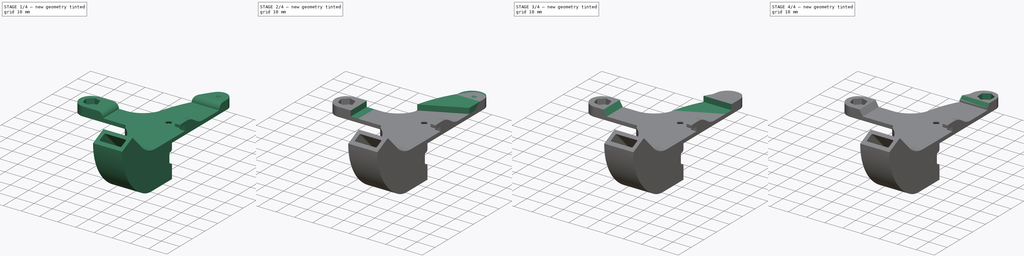
[diagram: build sequence overview — one tinted view per stage of 4, left to right]
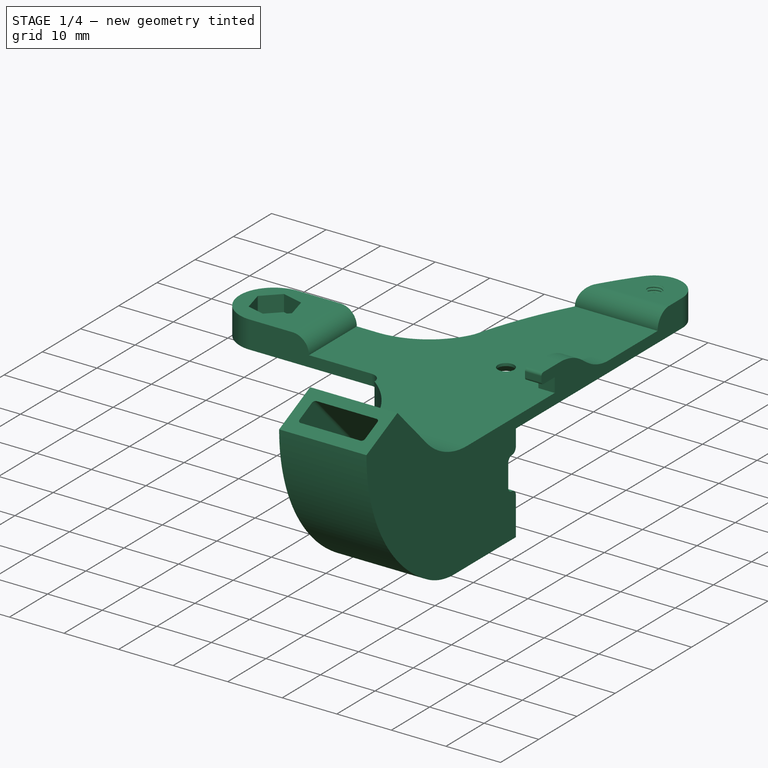
[diagram: stage 1 of 4 — iso view after this stage's code; geometry added in this stage tinted green]
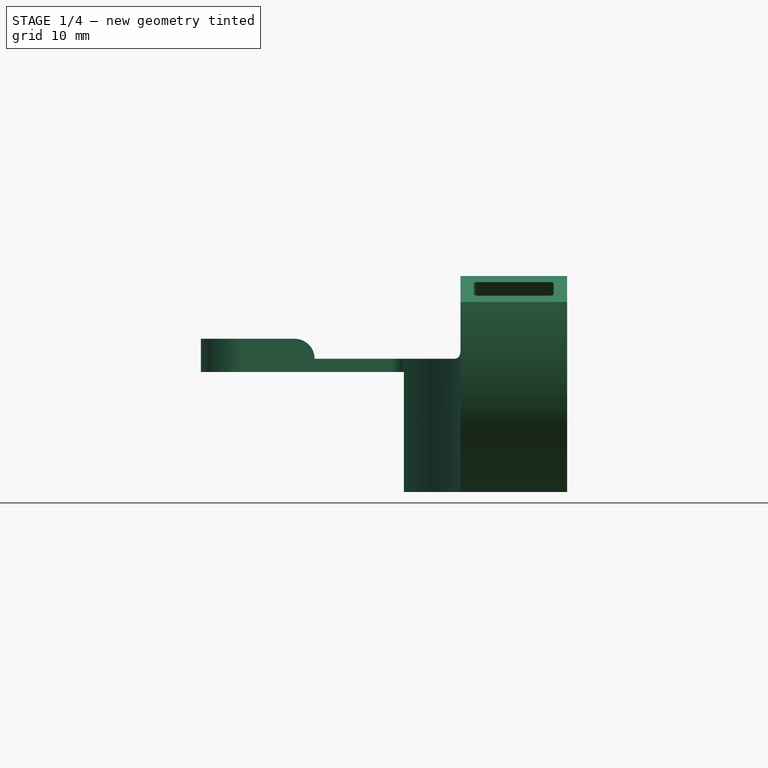
[diagram: stage 1 of 4 — front view after this stage's code; geometry added in this stage tinted green]
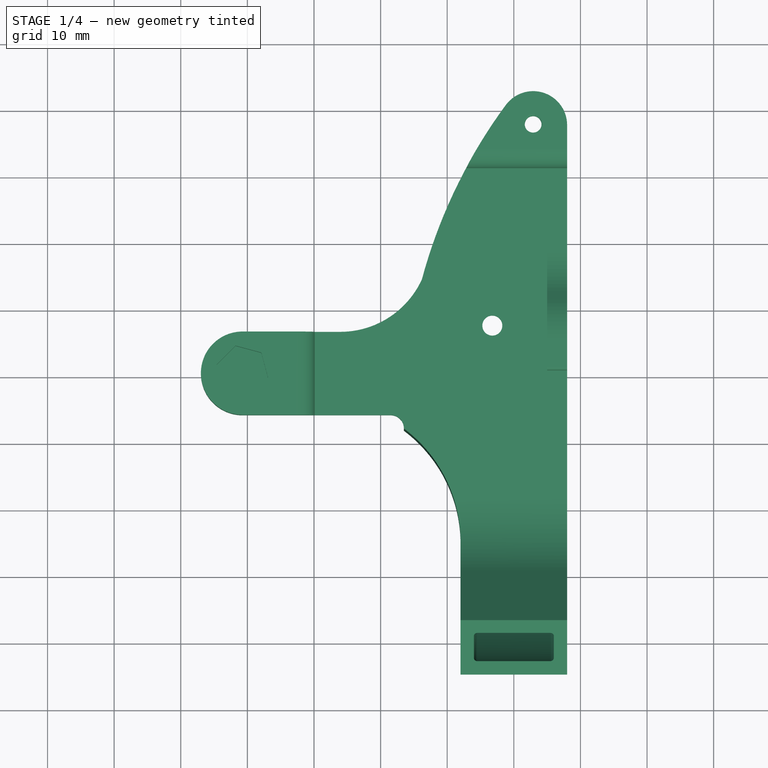
[diagram: stage 1 of 4 — top view after this stage's code; geometry added in this stage tinted green]
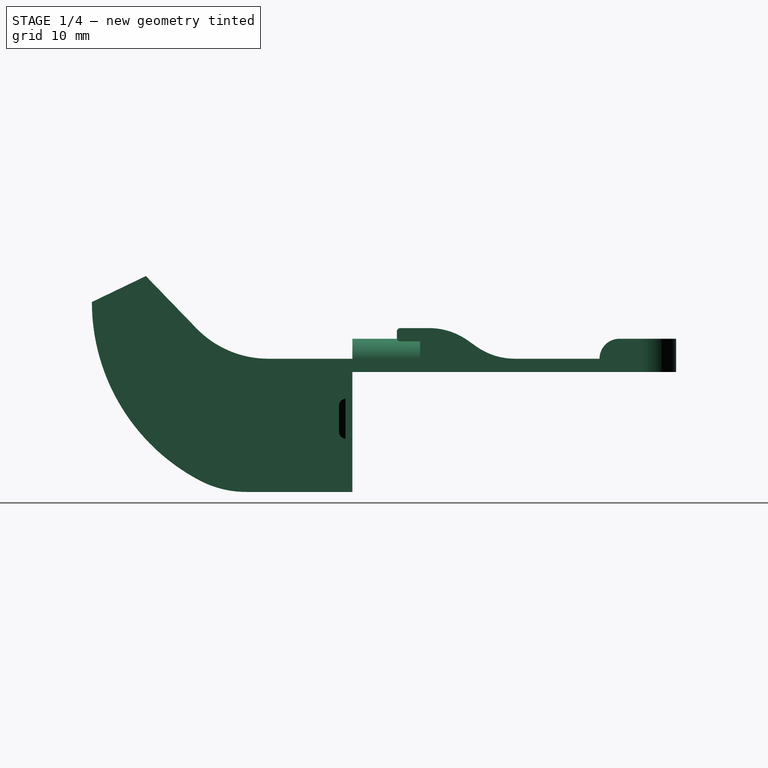
[diagram: stage 1 of 4 — right view after this stage's code; geometry added in this stage tinted green]
FCSTD DOCUMENT  (FreeCAD 0.22R37841 (Git))
Label: LeftFanDuct
License: All rights reserved
LicenseURL: http://en.wikipedia.org/wiki/All_rights_reserved
objects: Sketcher::SketchObject×8, PartDesign::Pocket×6, PartDesign::Pad×2, PartDesign::Chamfer×2, Part::Feature×1, PartDesign::FeatureBase×1, PartDesign::Body×1
note: 31 computed .brp shape members not serialized (recipe doc carries the construction recipe); baked Part::Feature solids carry a one-line shape summary decoded from their .brp

FEATURE [Part::Feature] Part__Feature001  label="Component3"
  Placement = pos=(148.755,-7.63929,30.4462) rot=(0,1,0;3.14159rad)
  shape: bbox 53.35 x 87.72 x 32.41 mm, 3777 faces (baked)
FEATURE [PartDesign::FeatureBase] BaseFeature
  BaseFeature = -> Part__Feature001
  Suppressed = false
FEATURE [Sketcher::SketchObject] Sketch
  AttachmentSupport = -> [BaseFeature]
  FullyConstrained = false
  MapMode = 5
  Placement = pos=(5.1e-15,2e-16,23) rot=(0,0,1;0rad)
  sketch-geometry (9):
    g0: Circle CenterX=-40.7366 CenterY=-9.47614 CenterZ=0 NormalX=0 NormalY=0 NormalZ=1 AngleXU=0 Radius=1.39065
    g1: Circle CenterX=-40.7366 CenterY=-9.47614 CenterZ=0 NormalX=0 NormalY=0 NormalZ=1 AngleXU=0 Radius=2
    g2: LineSegment StartX=-37.9081 StartY=-6.64771 StartZ=0 EndX=-41.7718 EndY=-5.61244 EndZ=0
    g3: LineSegment StartX=-41.7718 StartY=-5.61244 StartZ=0 EndX=-44.6003 EndY=-8.44086 EndZ=0
    g4: LineSegment StartX=-44.6003 StartY=-8.44086 StartZ=0 EndX=-43.565 EndY=-12.3046 EndZ=0
    g5: LineSegment StartX=-43.565 StartY=-12.3046 StartZ=0 EndX=-39.7013 EndY=-13.3398 EndZ=0
    g6: LineSegment StartX=-39.7013 StartY=-13.3398 StartZ=0 EndX=-36.8729 EndY=-10.5114 EndZ=0
    g7: LineSegment StartX=-36.8729 StartY=-10.5114 StartZ=0 EndX=-37.9081 EndY=-6.64771 EndZ=0
    g8: Circle CenterX=-40.7366 CenterY=-9.47614 CenterZ=0 NormalX=0 NormalY=0 NormalZ=1 AngleXU=0 Radius=4
  constraints (16):
    c: Diameter(g1) = 4
    c: Coincident(g1,g0)
    c: Coincident(g2,g3)
    c: Coincident(g3,g4)
    c: Coincident(g4,g5)
    c: Coincident(g5,g6)
    c: Coincident(g6,g7)
    c: Coincident(g7,g2)
    c: Equal(g2, g3-g7) x5
    c: PointOnObject(g2,g8)
    c: PointOnObject(g3,g8)
    c: PointOnObject(g4,g8)
    c: PointOnObject(g5,g8)
    c: PointOnObject(g6,g8)
    c: PointOnObject(g7,g8)
    c: Coincident(g8,g0)
FEATURE [Sketcher::SketchObject] Sketch002
  AttachmentSupport = -> [BaseFeature]
  FullyConstrained = false
  MapMode = 5
  Placement = pos=(5.1e-15,2e-16,23) rot=(0,0,1;0rad)
  sketch-geometry (6):
    g0: LineSegment StartX=-36.3383 StartY=-3.49 StartZ=0 EndX=-40.7267 EndY=-3.49 EndZ=0
    g1: LineSegment StartX=-40.7267 StartY=-16 StartZ=0 EndX=-36.3383 EndY=-16 EndZ=0
    g2: LineSegment StartX=-40.7267 StartY=-3.49 StartZ=0 EndX=-40.7267 EndY=-9.745 EndZ=0
    g3: LineSegment StartX=-40.7267 StartY=-9.745 StartZ=0 EndX=-40.7267 EndY=-16 EndZ=0
    g4: ArcOfCircle CenterX=-40.7267 CenterY=-9.745 CenterZ=0 NormalX=0 NormalY=0 NormalZ=1 AngleXU=0 Radius=6.255 StartAngle=1.5708 EndAngle=4.71239
    g5: LineSegment StartX=-36.3383 StartY=-3.49 StartZ=0 EndX=-36.3383 EndY=-16 EndZ=0
  constraints (14):
    c: Horizontal(g0)
    c: Horizontal(g1)
    c: DistanceY(g-1,g0) = -3.49
    c: Coincident(g2,g3)
    c: Perpendicular(g0,g3)
    c: Equal(g3,g2)
    c: Coincident(g4,g2)
    c: PointOnObject(g3,g4)
    c: Perpendicular(g0,g2) = 1.5708
    c: PointOnObject(g1,g3)
    c: Coincident(g4,g1)
    c: Coincident(g5,g0)
    c: Coincident(g5,g1)
    c: Vertical(g5)
FEATURE [PartDesign::Pad] Pad
  BaseFeature = -> BaseFeature
  Direction = (0,0,1)
  Length = 5
  Length2 = 10
  Profile = -> Sketch002
  ReferenceAxis = -> Sketch002 [N_Axis]
  Reversed = true
  Suppressed = false
  Type = 0
FEATURE [PartDesign::Pocket] Pocket
  BaseFeature = -> Pad
  Direction = (0,0,-1)
  Length = 3
  Length2 = 5
  Profile = -> Sketch
  ReferenceAxis = -> Sketch [N_Axis]
  Suppressed = false
  Type = 0
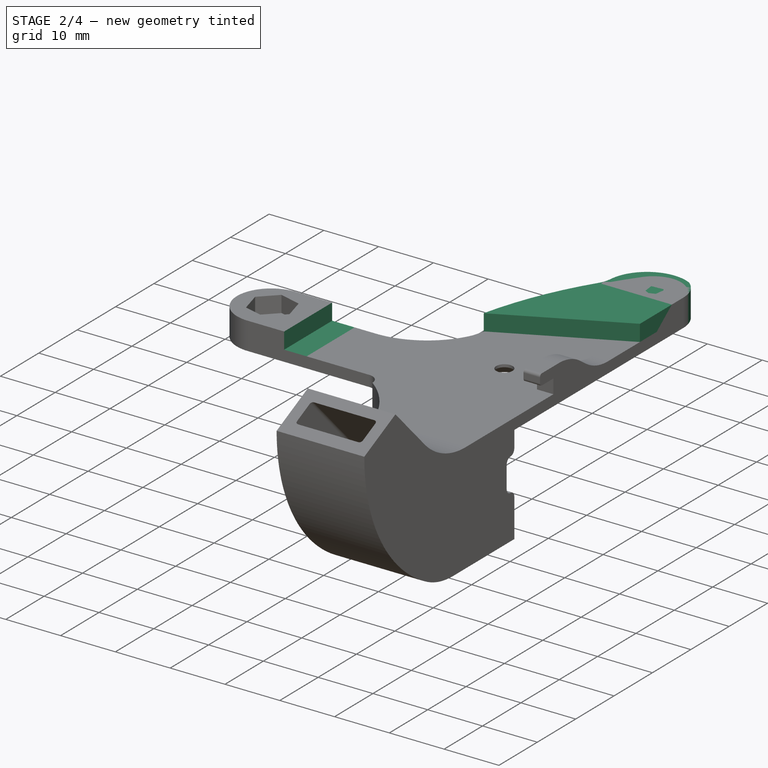
[diagram: stage 2 of 4 — iso view after this stage's code; geometry added in this stage tinted green]
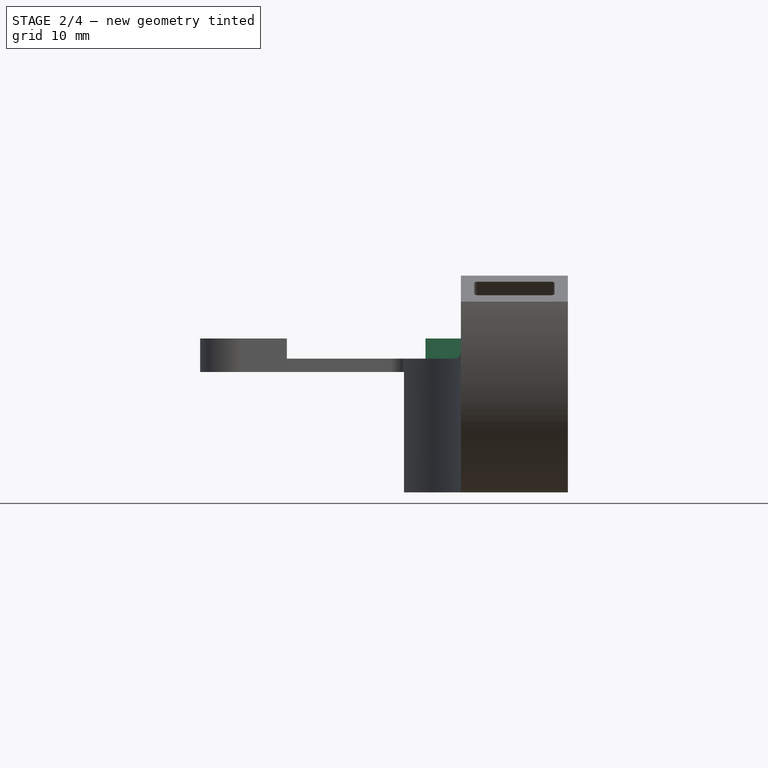
[diagram: stage 2 of 4 — front view after this stage's code; geometry added in this stage tinted green]
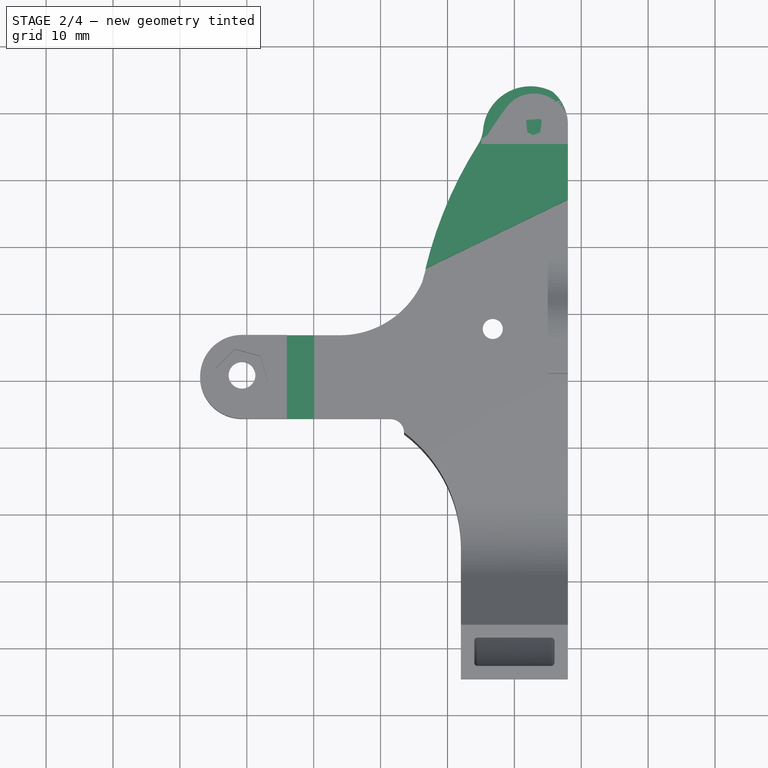
[diagram: stage 2 of 4 — top view after this stage's code; geometry added in this stage tinted green]
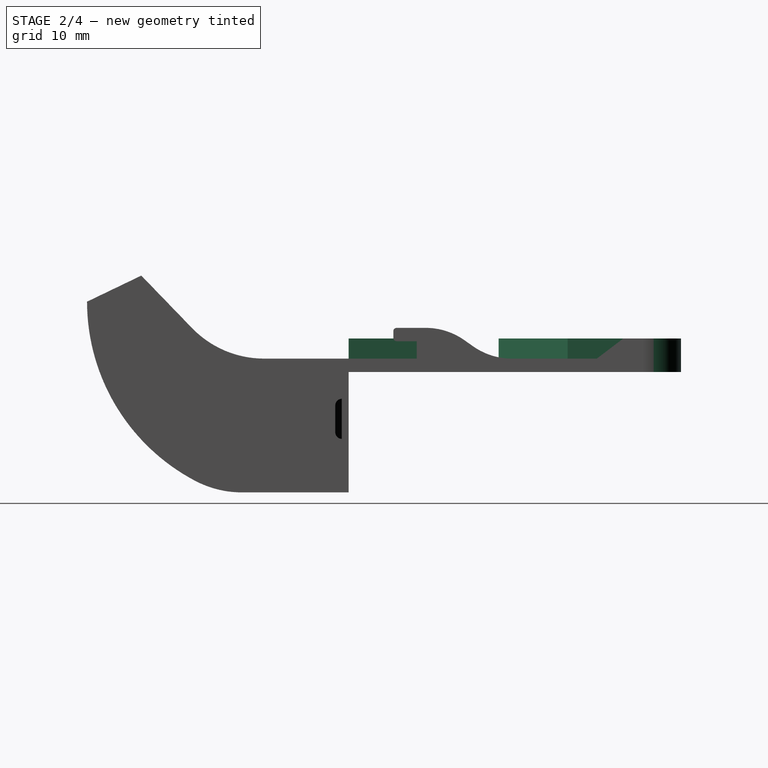
[diagram: stage 2 of 4 — right view after this stage's code; geometry added in this stage tinted green]
FEATURE [Sketcher::SketchObject] Sketch001
  AttachmentSupport = -> [Pocket]
  FullyConstrained = false
  MapMode = 5
  Placement = pos=(5.1e-15,2e-16,23) rot=(0,0,1;0rad)
  sketch-geometry (2):
    g0: Circle CenterX=-40.718 CenterY=-9.46832 CenterZ=0 NormalX=0 NormalY=0 NormalZ=1 AngleXU=0 Radius=1.39707
    g1: Circle CenterX=-40.718 CenterY=-9.46832 CenterZ=0 NormalX=0 NormalY=0 NormalZ=1 AngleXU=0 Radius=2
  constraints (2):
    c: Coincident(g1,g0)
    c: Diameter(g1) = 4
FEATURE [PartDesign::Pocket] Pocket001
  BaseFeature = -> Pocket
  Direction = (0,0,-1)
  Length = 5
  Length2 = 5
  Profile = -> Sketch001
  ReferenceAxis = -> Sketch001 [N_Axis]
  Suppressed = false
  Type = 1
FEATURE [Sketcher::SketchObject] Sketch003
  AttachmentSupport = -> [Pocket001]
  FullyConstrained = false
  MapMode = 5
  Placement = pos=(4.97e-14,0,23) rot=(0,0,1;0rad)
  sketch-geometry (2):
    g0: Circle CenterX=2.8779 CenterY=27.7811 CenterZ=0 NormalX=0 NormalY=0 NormalZ=1 AngleXU=0 Radius=1.396
    g1: Circle CenterX=2.8779 CenterY=27.7811 CenterZ=0 NormalX=0 NormalY=0 NormalZ=1 AngleXU=0 Radius=2
  constraints (2):
    c: Diameter(g1) = 4
    c: Coincident(g1,g0)
FEATURE [Sketcher::SketchObject] Sketch004
  AttachmentSupport = -> [Pocket001]
  ExternalGeometry = -> [Sketch003]
  FullyConstrained = false
  MapMode = 5
  Placement = pos=(4.97e-14,0,23) rot=(0,0,1;0rad)
  sketch-geometry (7):
    g0: LineSegment StartX=2.8779 StartY=31.7811 StartZ=0 EndX=-0.586201 EndY=29.7811 EndZ=0
    g1: LineSegment StartX=-0.586201 StartY=29.7811 StartZ=0 EndX=-0.586201 EndY=25.7811 EndZ=0
    g2: LineSegment StartX=-0.586201 StartY=25.7811 StartZ=0 EndX=2.8779 EndY=23.7811 EndZ=0
    g3: LineSegment StartX=2.8779 StartY=23.7811 StartZ=0 EndX=6.342 EndY=25.7811 EndZ=0
    g4: LineSegment StartX=6.342 StartY=25.7811 StartZ=0 EndX=6.342 EndY=29.7811 EndZ=0
    g5: LineSegment StartX=6.342 StartY=29.7811 StartZ=0 EndX=2.8779 EndY=31.7811 EndZ=0
    g6: Circle CenterX=2.8779 CenterY=27.7811 CenterZ=0 NormalX=0 NormalY=0 NormalZ=1 AngleXU=0 Radius=4
  constraints (15):
    c: Coincident(g0,g1)
    c: Coincident(g1,g2)
    c: Coincident(g2,g3)
    c: Coincident(g3,g4)
    c: Coincident(g4,g5)
    c: Coincident(g5,g0)
    c: Equal(g0, g1-g5) x5
    c: PointOnObject(g0,g6)
    c: PointOnObject(g1,g6)
    c: PointOnObject(g2,g6)
    c: PointOnObject(g3,g6)
    c: PointOnObject(g4,g6)
    c: PointOnObject(g5,g6)
    c: Radius(g6) = 4
    c: Coincident(g6,g-3)
FEATURE [Sketcher::SketchObject] Sketch005
  AttachmentSupport = -> [Pocket001]
  FullyConstrained = false
  MapMode = 5
  Placement = pos=(5.1e-15,2e-16,23) rot=(0,0,1;0rad)
  sketch-geometry (8):
    g0: LineSegment StartX=-34.0076 StartY=-2.35033 StartZ=0 EndX=-34.0076 EndY=-17.3502 EndZ=0
    g1: LineSegment StartX=-34.0076 StartY=-17.3502 StartZ=0 EndX=-26.4148 EndY=-17.3502 EndZ=0
    g2: LineSegment StartX=-26.4148 StartY=-17.3502 StartZ=0 EndX=-26.4148 EndY=-2.35033 EndZ=0
    g3: LineSegment StartX=-26.4148 StartY=-2.35033 StartZ=0 EndX=-34.0076 EndY=-2.35033 EndZ=0
    g4: LineSegment StartX=-10.1707 StartY=25.0453 StartZ=0 EndX=-10.1707 EndY=19.7945 EndZ=0
    g5: LineSegment StartX=-10.1707 StartY=19.7945 StartZ=0 EndX=10.6849 EndY=19.7945 EndZ=0
    g6: LineSegment StartX=10.6849 StartY=19.7945 StartZ=0 EndX=10.6849 EndY=25.0453 EndZ=0
    g7: LineSegment StartX=10.6849 StartY=25.0453 StartZ=0 EndX=-10.1707 EndY=25.0453 EndZ=0
  constraints (16):
    c: Coincident(g0,g1)
    c: Coincident(g1,g2)
    c: Coincident(g2,g3)
    c: Coincident(g3,g0)
    c: Vertical(g0)
    c: Vertical(g2)
    c: Horizontal(g1)
    c: Horizontal(g3)
    c: Coincident(g4,g5)
    c: Coincident(g5,g6)
    c: Coincident(g6,g7)
    c: Coincident(g7,g4)
    c: Vertical(g4)
    c: Vertical(g6)
    c: Horizontal(g5)
    c: Horizontal(g7)
FEATURE [PartDesign::Pocket] Pocket002
  BaseFeature = -> Pocket001
  Direction = (0,0,-1)
  Length = 3
  Length2 = 5
  Profile = -> Sketch005
  ReferenceAxis = -> Sketch005 [N_Axis]
  Suppressed = false
  Type = 0
FEATURE [Sketcher::SketchObject] Sketch006
  AttachmentSupport = -> [BaseFeature]
  ExternalGeometry = -> [Sketch003]
  FullyConstrained = false
  MapMode = 5
  Placement = pos=(4.97e-14,0,23) rot=(0,0,1;0rad)
  sketch-geometry (6):
    g0: LineSegment StartX=8 StartY=16.7365 StartZ=0 EndX=8 EndY=27.7841 EndZ=0
    g1: ArcOfCircle CenterX=46.9425 CenterY=-8.14624 CenterZ=0 NormalX=0 NormalY=0 NormalZ=1 AngleXU=0 Radius=61.9672 StartAngle=2.57842 EndAngle=2.90434
    g2: LineSegment StartX=-13.2888 StartY=6.41834 StartZ=0 EndX=8 EndY=16.7365 EndZ=0
    g3: ArcOfCircle CenterX=1.65638 CenterY=27.9877 CenterZ=0 NormalX=0 NormalY=0 NormalZ=1 AngleXU=0 Radius=6.34689 StartAngle=6.25109 EndAngle=7.16846
    g4: ArcOfCircle CenterX=2.42579 CenterY=26.5529 CenterZ=0 NormalX=0 NormalY=0 NormalZ=1 AngleXU=0 Radius=7.13086 StartAngle=1.09778 EndAngle=3.04699
    g5: ArcOfCircle CenterX=-9.86184 CenterY=27.7189 CenterZ=0 NormalX=0 NormalY=0 NormalZ=1 AngleXU=0 Radius=5.21197 StartAngle=5.72001 EndAngle=6.18858
  constraints (8):
    c: Vertical(g0)
    c: DistanceX(g-2,g0) = 8
    c: Coincident(g2,g1)
    c: Coincident(g2,g0)
    c: Coincident(g3,g0)
    c: Coincident(g3,g4)
    c: Tangent(g4,g5) = 1.5708
    c: Tangent(g1,g5) = 1.5708
FEATURE [PartDesign::Pad] Pad001
  BaseFeature = -> Pocket002
  Direction = (2.2e-15,0,1)
  Length = 5
  Length2 = 10
  Profile = -> Sketch006
  ReferenceAxis = -> Sketch006 [N_Axis]
  Reversed = true
  Suppressed = false
  Type = 0
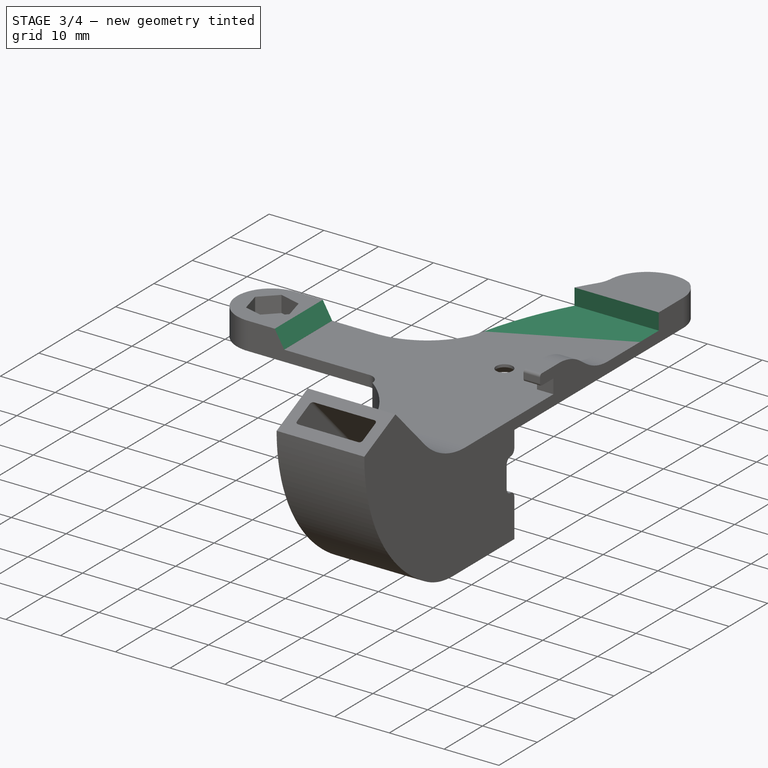
[diagram: stage 3 of 4 — iso view after this stage's code; geometry added in this stage tinted green]
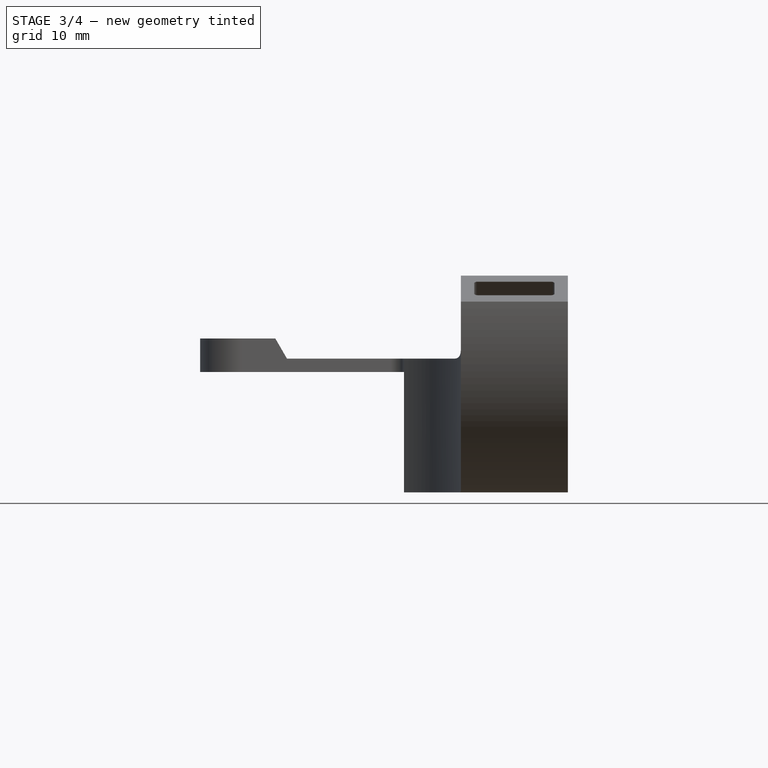
[diagram: stage 3 of 4 — front view after this stage's code; geometry added in this stage tinted green]
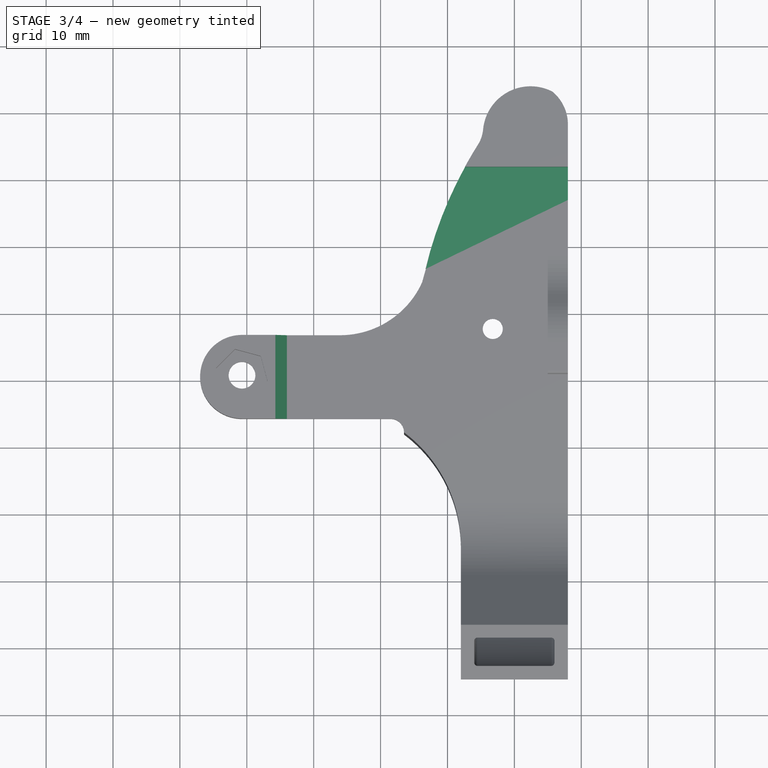
[diagram: stage 3 of 4 — top view after this stage's code; geometry added in this stage tinted green]
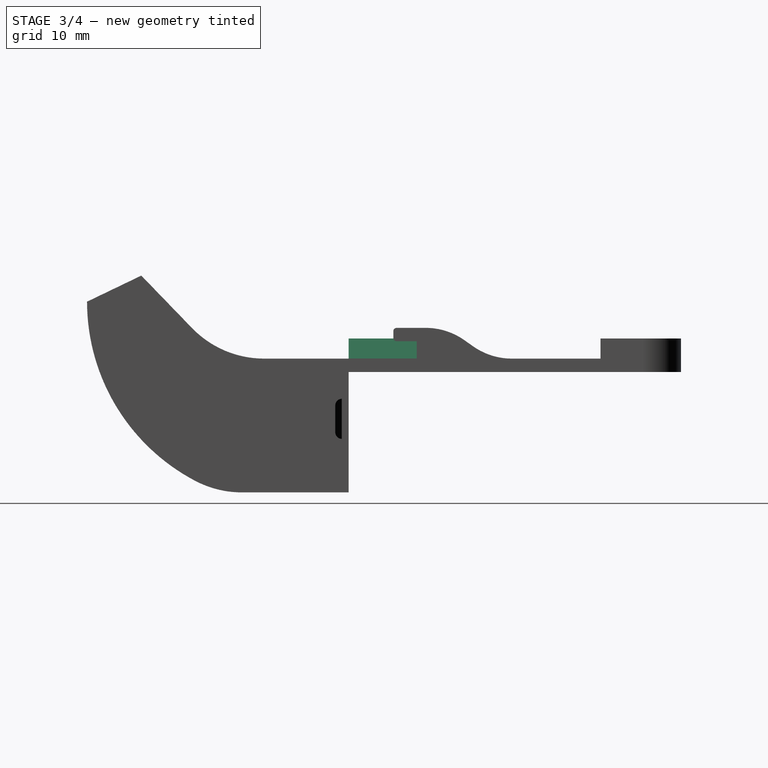
[diagram: stage 3 of 4 — right view after this stage's code; geometry added in this stage tinted green]
FEATURE [Sketcher::SketchObject] Sketch007
  AttachmentSupport = -> [Pad001]
  FullyConstrained = false
  MapMode = 5
  Placement = pos=(5e-14,0,23) rot=(0,0,1;0rad)
  sketch-geometry (5):
    g0: LineSegment StartX=-16.3585 StartY=21.6547 StartZ=0 EndX=-16.3585 EndY=5.00338 EndZ=0
    g1: LineSegment StartX=-16.3585 StartY=5.00338 StartZ=0 EndX=-1.28955 EndY=5.00338 EndZ=0
    g2: LineSegment StartX=13.7794 StartY=16.2098 StartZ=0 EndX=13.7794 EndY=21.6547 EndZ=0
    g3: LineSegment StartX=13.7794 StartY=21.6547 StartZ=0 EndX=-16.3585 EndY=21.6547 EndZ=0
    g4: LineSegment StartX=-1.28955 StartY=5.00338 StartZ=0 EndX=13.7794 EndY=16.2098 EndZ=0
  constraints (9):
    c: Coincident(g0,g1)
    c: Coincident(g2,g3)
    c: Coincident(g3,g0)
    c: Vertical(g0)
    c: Vertical(g2)
    c: Horizontal(g1)
    c: Horizontal(g3)
    c: Coincident(g2,g4)
    c: PointOnObject(g1,g4)
FEATURE [PartDesign::Pocket] Pocket003
  BaseFeature = -> Pad001
  Direction = (-2.2e-15,0,-1)
  Length = 3
  Length2 = 5
  Profile = -> Sketch007
  ReferenceAxis = -> Sketch007 [N_Axis]
  Suppressed = false
  Type = 0
FEATURE [PartDesign::Chamfer] Chamfer
  Angle = 60
  Base = -> Pocket003 [Edge18]
  BaseFeature = -> Pocket003
  ChamferType = 2
  FlipDirection = false
  Size = 1.72
  Size2 = 1
  SupportTransform = false
  Suppressed = false
  UseAllEdges = false
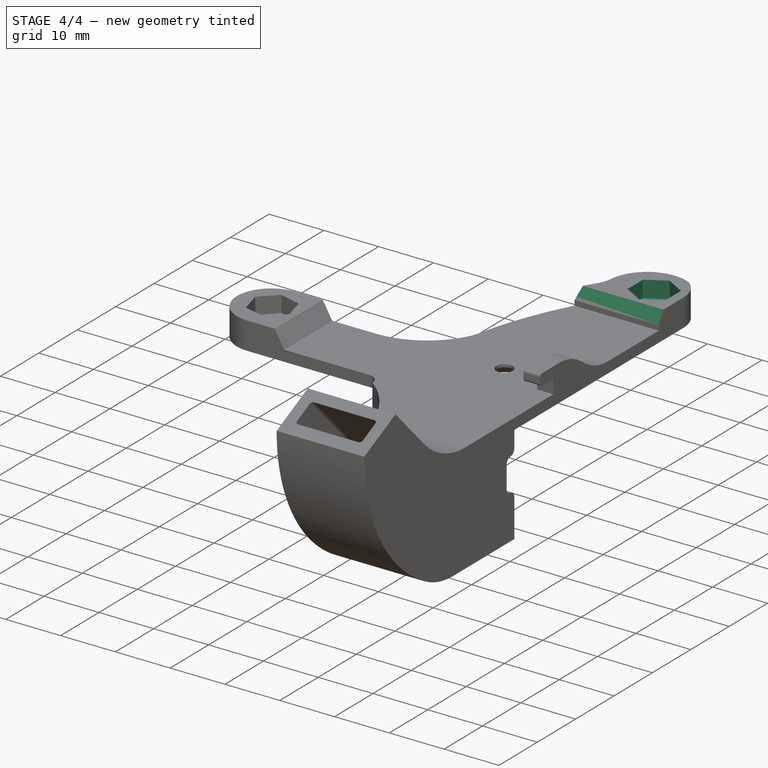
[diagram: stage 4 of 4 — iso view after this stage's code; geometry added in this stage tinted green]
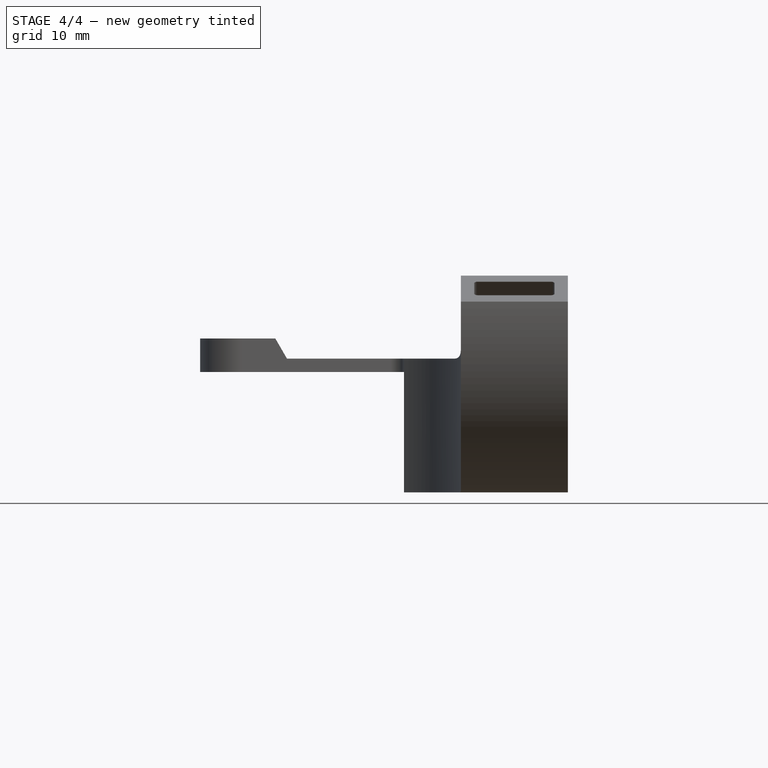
[diagram: stage 4 of 4 — front view after this stage's code; geometry added in this stage tinted green]
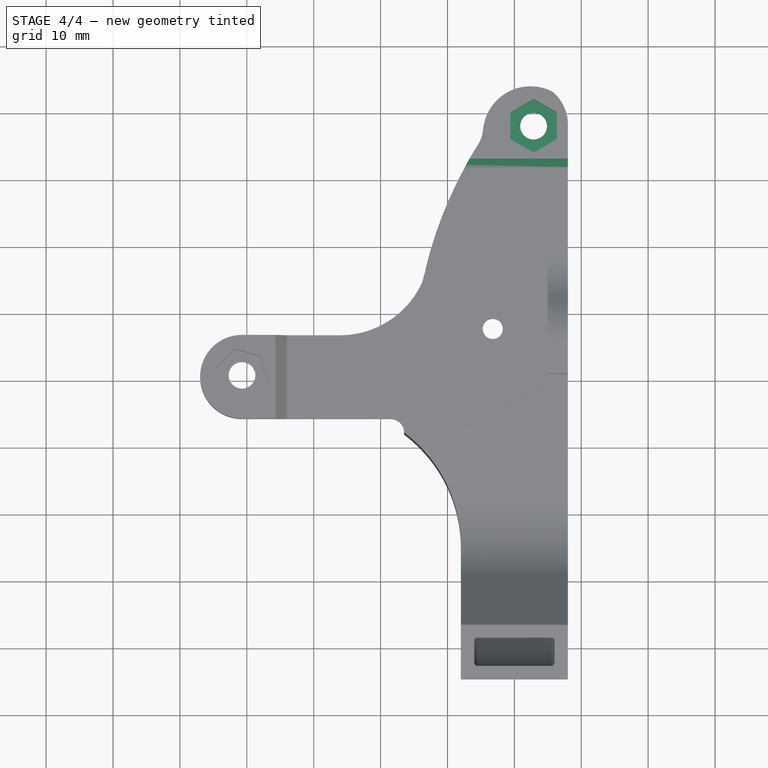
[diagram: stage 4 of 4 — top view after this stage's code; geometry added in this stage tinted green]
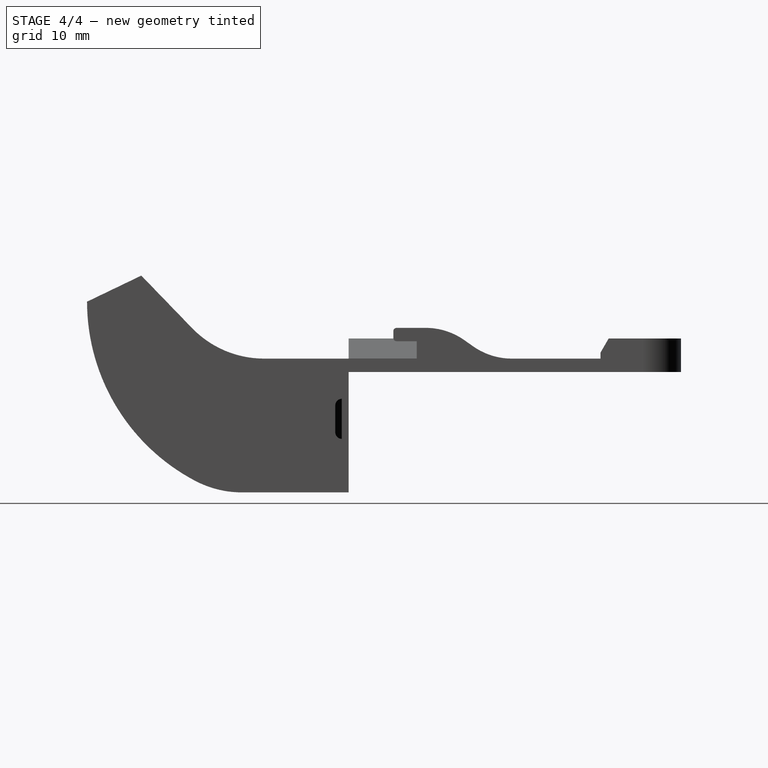
[diagram: stage 4 of 4 — right view after this stage's code; geometry added in this stage tinted green]
FEATURE [PartDesign::Chamfer] Chamfer001
  Angle = 30
  Base = -> Chamfer [Edge1619]
  BaseFeature = -> Chamfer
  ChamferType = 2
  FlipDirection = false
  Size = 2.1
  Size2 = 1
  SupportTransform = false
  Suppressed = false
  UseAllEdges = false
FEATURE [PartDesign::Pocket] Pocket004
  BaseFeature = -> Chamfer001
  Direction = (-2.2e-15,0,-1)
  Length = 5
  Length2 = 5
  Profile = -> Sketch003
  ReferenceAxis = -> Sketch003 [N_Axis]
  Suppressed = false
  Type = 1
FEATURE [PartDesign::Pocket] Pocket005
  BaseFeature = -> Pocket004
  Direction = (-2.2e-15,0,-1)
  Length = 3
  Length2 = 5
  Profile = -> Sketch004
  ReferenceAxis = -> Sketch004 [N_Axis]
  Suppressed = false
  Type = 0
FEATURE [PartDesign::Body] Body
  AllowCompound = false
  BaseFeature = -> Part__Feature001
  Group = -> [BaseFeature,Pad,Sketch,Pocket,Sketch001,Pocket001,Sketch002,Sketch003,Sketch004,Sketch005,Pocket002,Sketch006,Pad001,Sketch007,Pocket003,Chamfer,Chamfer001,Pocket004,Pocket005]
  Origin = -> Origin
  Tip = -> Pocket005
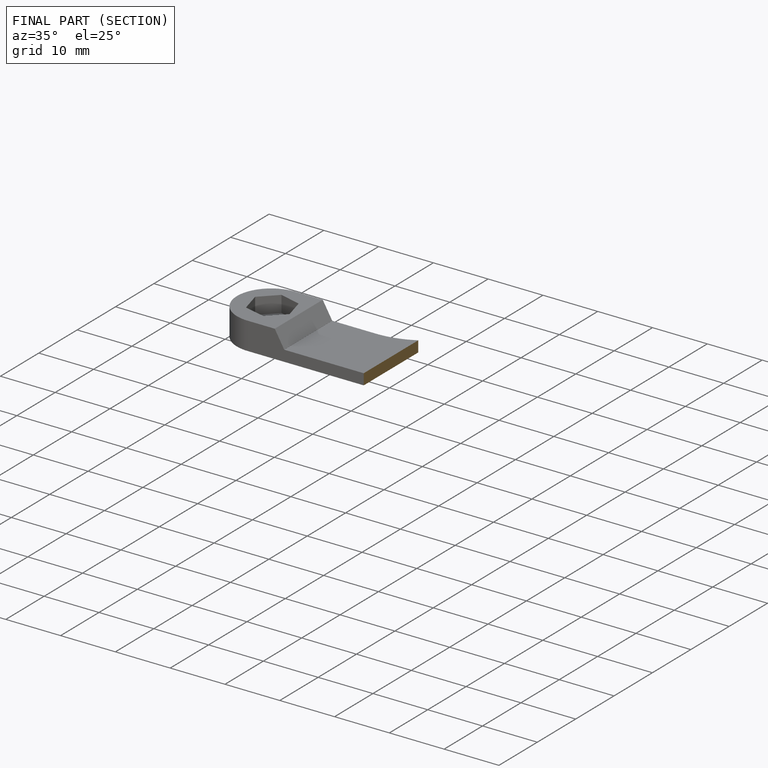
[diagram: finished part — half-section view (interior)]
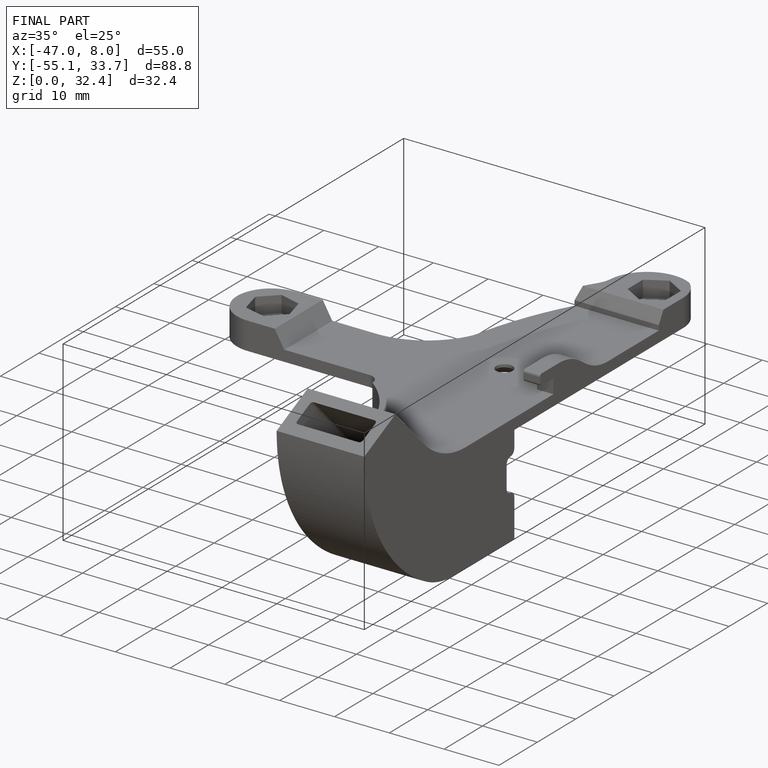
[diagram: finished part — iso view with bounding-box wireframe]
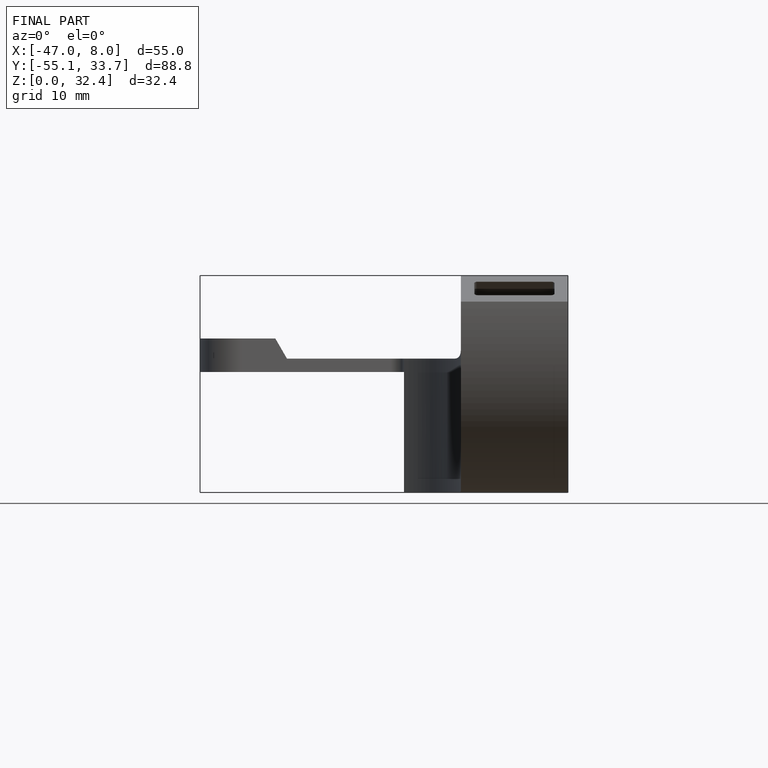
[diagram: finished part — front view with bounding-box wireframe]
